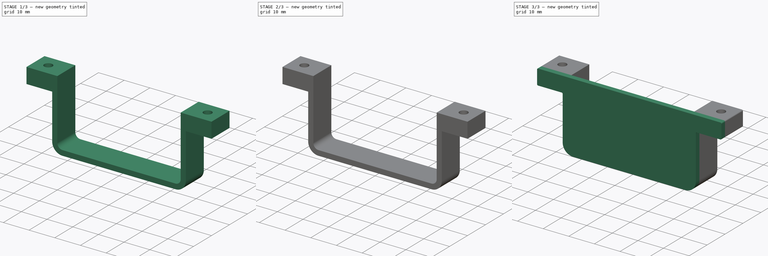
[diagram: build sequence overview — one tinted view per stage of 3, left to right]
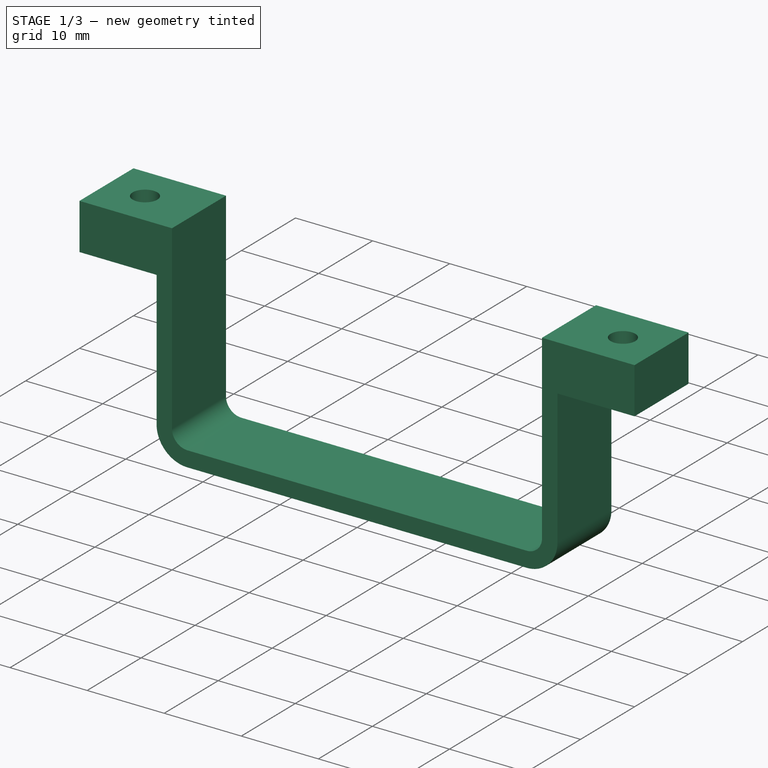
[diagram: stage 1 of 3 — iso view after this stage's code; geometry added in this stage tinted green]
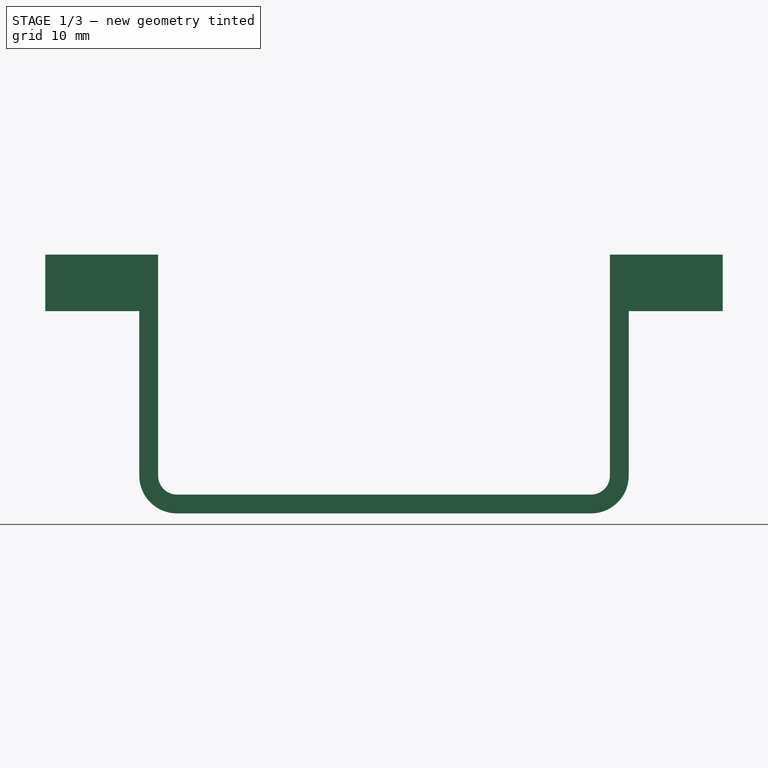
[diagram: stage 1 of 3 — front view after this stage's code; geometry added in this stage tinted green]
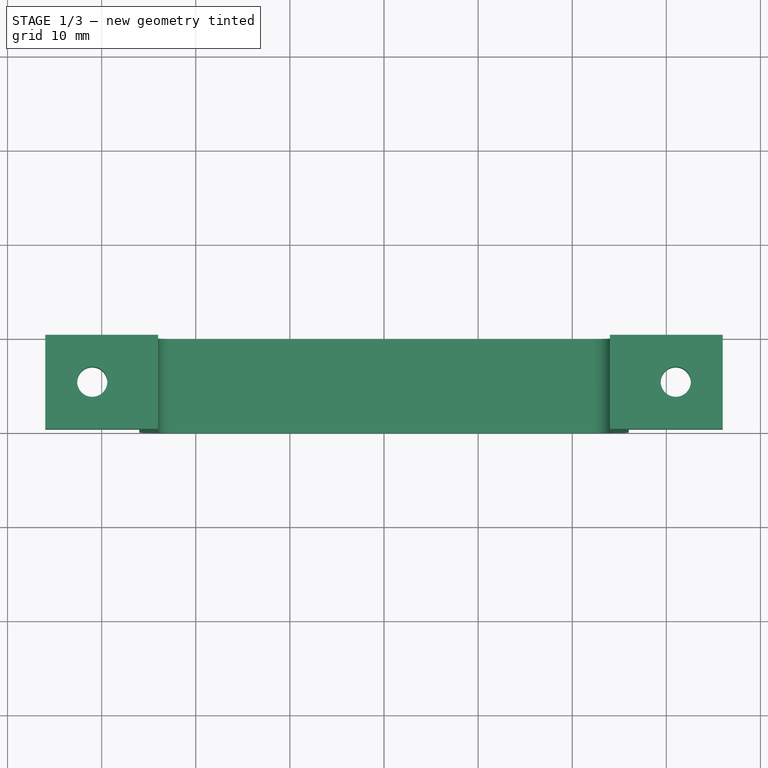
[diagram: stage 1 of 3 — top view after this stage's code; geometry added in this stage tinted green]
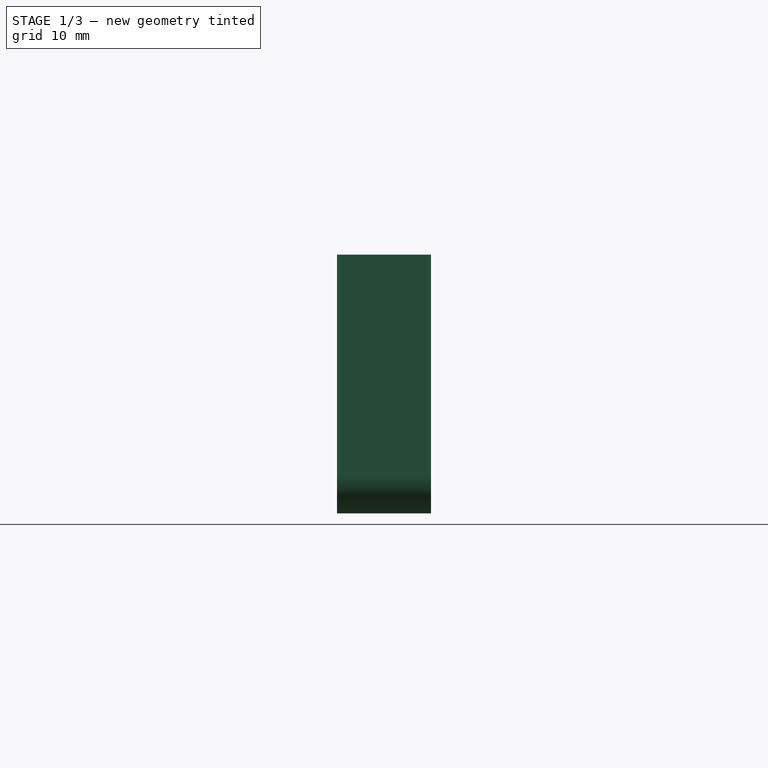
[diagram: stage 1 of 3 — right view after this stage's code; geometry added in this stage tinted green]
FCSTD DOCUMENT  (FreeCAD 0.18R4 (GitTag))
Label: LiPo_Mountingbracket_Front
License: CreativeCommons Attribution-NonCommercial
LicenseURL: http://creativecommons.org/licenses/by-nc/4.0/
objects: Sketcher::SketchObject×4, PartDesign::Pad×2, PartDesign::Pocket×2, PartDesign::Fillet×1, PartDesign::Body×1, App::Part×1
note: 14 computed .brp shape members not serialized (recipe doc carries the construction recipe); baked Part::Feature solids carry a one-line shape summary decoded from their .brp

FEATURE [Sketcher::SketchObject] Sketch
  MapMode = 5
  Placement = pos=(0,0,0) rot=(1,0,0;1.5708rad)
  Support = -> [XZ_Plane001]
  sketch-geometry (16):
    g0: LineSegment StartX=-36 StartY=0 StartZ=0 EndX=-36 EndY=-6 EndZ=0
    g1: LineSegment StartX=-36 StartY=-6 StartZ=0 EndX=-26 EndY=-6 EndZ=0
    g2: LineSegment StartX=-26 StartY=-6 StartZ=0 EndX=-26 EndY=-23.5 EndZ=0
    g3: LineSegment StartX=-22 StartY=-27.5 StartZ=0 EndX=22 EndY=-27.5 EndZ=0
    g4: LineSegment StartX=26 StartY=-23.5 StartZ=0 EndX=26 EndY=-6 EndZ=0
    g5: LineSegment StartX=26 StartY=-6 StartZ=0 EndX=36 EndY=-6 EndZ=0
    g6: LineSegment StartX=36 StartY=-6 StartZ=0 EndX=36 EndY=0 EndZ=0
    g7: LineSegment StartX=36 StartY=0 StartZ=0 EndX=24 EndY=0 EndZ=0
    g8: LineSegment StartX=24 StartY=0 StartZ=0 EndX=24 EndY=-23.5 EndZ=0
    g9: LineSegment StartX=22 StartY=-25.5 StartZ=0 EndX=-22 EndY=-25.5 EndZ=0
    g10: LineSegment StartX=-24 StartY=-23.5 StartZ=0 EndX=-24 EndY=0 EndZ=0
    g11: LineSegment StartX=-24 StartY=0 StartZ=0 EndX=-36 EndY=0 EndZ=0
    g12: ArcOfCircle CenterX=-22 CenterY=-23.5 CenterZ=0 NormalX=0 NormalY=0 NormalZ=1 AngleXU=0 Radius=2 StartAngle=3.14159 EndAngle=4.71239
    g13: ArcOfCircle CenterX=-22 CenterY=-23.5 CenterZ=0 NormalX=0 NormalY=0 NormalZ=1 AngleXU=0 Radius=4 StartAngle=3.14159 EndAngle=4.71239
    g14: ArcOfCircle CenterX=22 CenterY=-23.5 CenterZ=0 NormalX=0 NormalY=0 NormalZ=1 AngleXU=0 Radius=2 StartAngle=4.71239 EndAngle=6.28319
    g15: ArcOfCircle CenterX=22 CenterY=-23.5 CenterZ=0 NormalX=0 NormalY=0 NormalZ=1 AngleXU=0 Radius=4 StartAngle=4.71239 EndAngle=6.28319
  constraints (41):
    c: PointOnObject(g0,g-1)
    c: Vertical(g0)
    c: Coincident(g0,g1)
    c: Horizontal(g1)
    c: Coincident(g1,g2)
    c: Vertical(g2)
    c: Horizontal(g3)
    c: Vertical(g4)
    c: Coincident(g4,g5)
    c: Coincident(g5,g6)
    c: Vertical(g6)
    c: Coincident(g6,g7)
    c: Horizontal(g7)
    c: Coincident(g7,g8)
    c: Vertical(g8)
    c: Horizontal(g9)
    c: Vertical(g10)
    c: Coincident(g10,g11)
    c: Coincident(g11,g0)
    c: Horizontal(g11)
    c: Symmetric(g7,g10,g-1)
    c: DistanceX(g10,g7) = 48
    c: Symmetric(g5,g0,g-2)
    c: Symmetric(g1,g4,g-2)
    c: DistanceY(g0,g0) = 6
    c: DistanceX(g11,g11) = 12
    c: Tangent(g9,g12) = 1.5708
    c: Tangent(g10,g12) = 1.5708
    c: Tangent(g2,g13) = -1.5708
    c: Tangent(g3,g13) = -1.5708
    c: Tangent(g8,g14) = 1.5708
    c: Tangent(g9,g14) = 1.5708
    c: Tangent(g3,g15) = -1.5708
    c: Tangent(g4,g15) = -1.5708
    c: Radius(g12) = 2
    c: Radius(g13) = 4
    c: Horizontal(g10,g2)
    c: Horizontal(g8,g4)
    c: Vertical(g3,g9)
    c: DistanceY(g3,g10) = 27.5
    c: Equal(g14,g12)
FEATURE [PartDesign::Pad] Pad  label="Baseplate"
  Length = 10
  Length2 = 100
  Placement = pos=(0,0,0) rot=(1,0,0;1.5708rad)
  Profile = -> Sketch
  Reversed = true
  Type = 0
FEATURE [Sketcher::SketchObject] Sketch002
  MapMode = 5
  Placement = pos=(0,-1.3e-15,-6) rot=(1,0,0;3.14159rad)
  Support = -> [Pad]
  sketch-geometry (2):
    g0: Circle CenterX=-31 CenterY=-5 CenterZ=0 NormalX=0 NormalY=0 NormalZ=1 AngleXU=0 Radius=1.6
    g1: Circle CenterX=31 CenterY=-5 CenterZ=0 NormalX=0 NormalY=0 NormalZ=1 AngleXU=0 Radius=1.6
  constraints (5):
    c: Symmetric(g0,g1,g-2)
    c: Equal(g0,g1)
    c: Radius(g0) = 1.6
    c: DistanceX(g0,g-1) = 31
    c: DistanceY(g0,g-1) = 5
FEATURE [PartDesign::Pocket] Pocket  label="M3 Throughhole"
  BaseFeature = -> Pad
  Length = 6
  Length2 = 100
  Placement = pos=(0,0,0) rot=(1,0,0;1.5708rad)
  Profile = -> Sketch002
  Type = 0
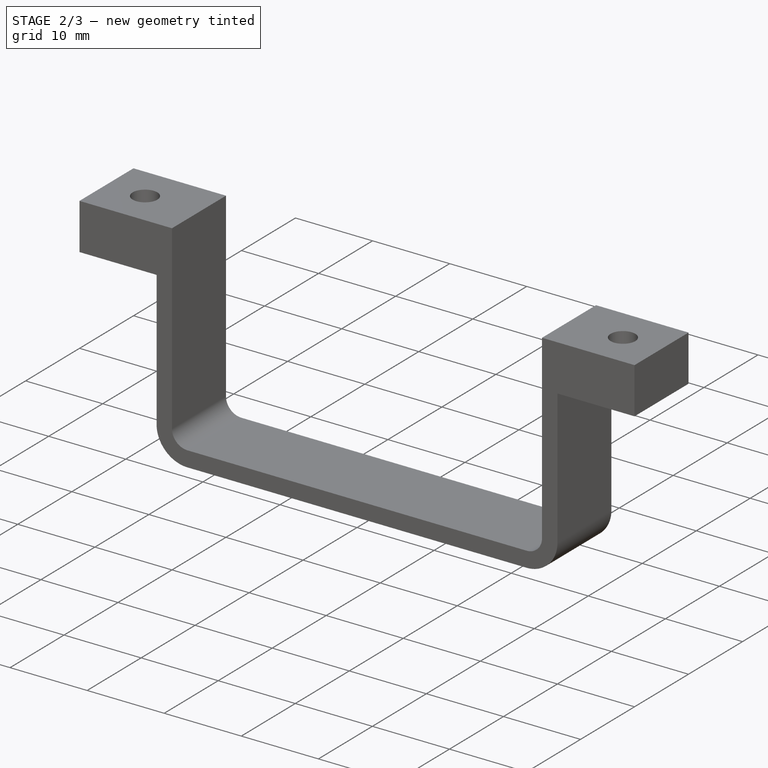
[diagram: stage 2 of 3 — iso view after this stage's code; geometry added in this stage tinted green]
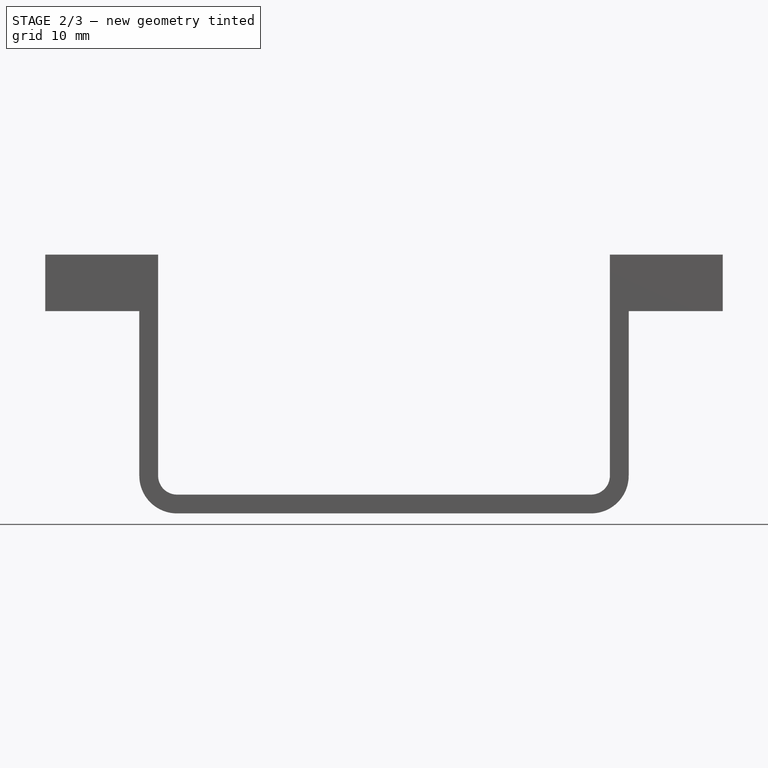
[diagram: stage 2 of 3 — front view after this stage's code; geometry added in this stage tinted green]
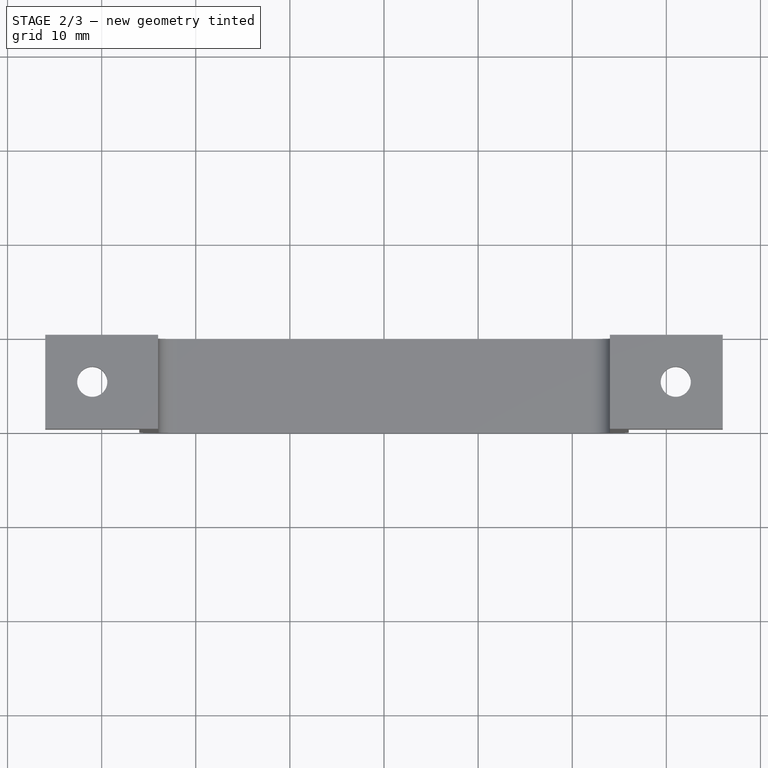
[diagram: stage 2 of 3 — top view after this stage's code; geometry added in this stage tinted green]
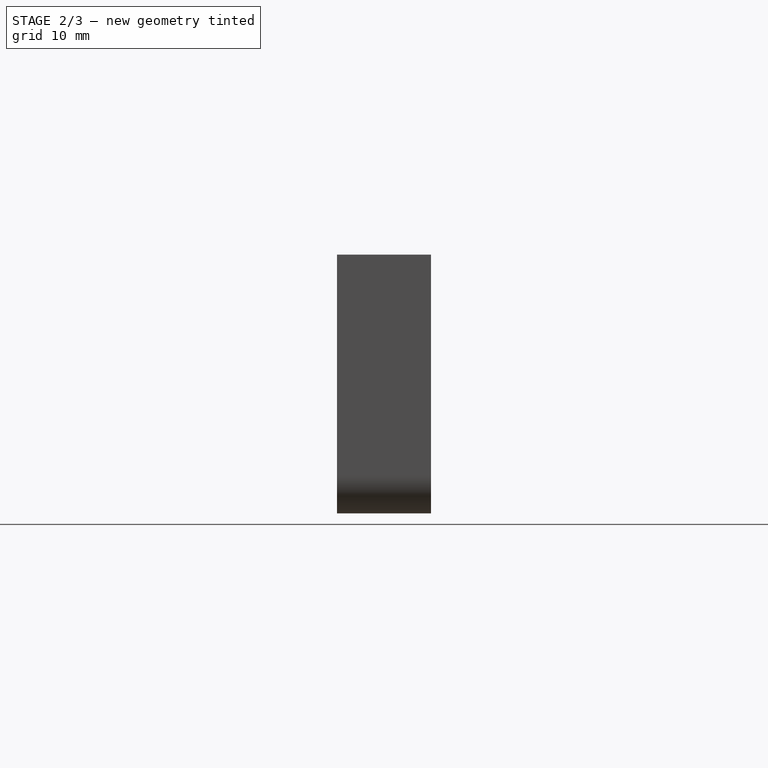
[diagram: stage 2 of 3 — right view after this stage's code; geometry added in this stage tinted green]
FEATURE [Sketcher::SketchObject] Sketch003
  MapMode = 5
  Placement = pos=(0,-1.3e-15,-6) rot=(1,0,0;3.14159rad)
  Support = -> [Pocket]
  sketch-geometry (2):
    g0: Circle CenterX=-31 CenterY=-5 CenterZ=0 NormalX=0 NormalY=0 NormalZ=1 AngleXU=0 Radius=2.85
    g1: Circle CenterX=31 CenterY=-5 CenterZ=0 NormalX=0 NormalY=0 NormalZ=1 AngleXU=0 Radius=2.85
  constraints (5):
    c: Equal(g1,g0)
    c: Radius(g0) = 2.85
    c: DistanceY(g0,g-1) = 5
    c: Symmetric(g0,g1,g-2)
    c: DistanceX(g1) = 31
FEATURE [PartDesign::Pocket] Pocket001  label="M3 Head Hole"
  BaseFeature = -> Pocket
  Length = 3
  Length2 = 100
  Placement = pos=(0,0,0) rot=(1,0,0;1.5708rad)
  Profile = -> Sketch003
  Type = 0
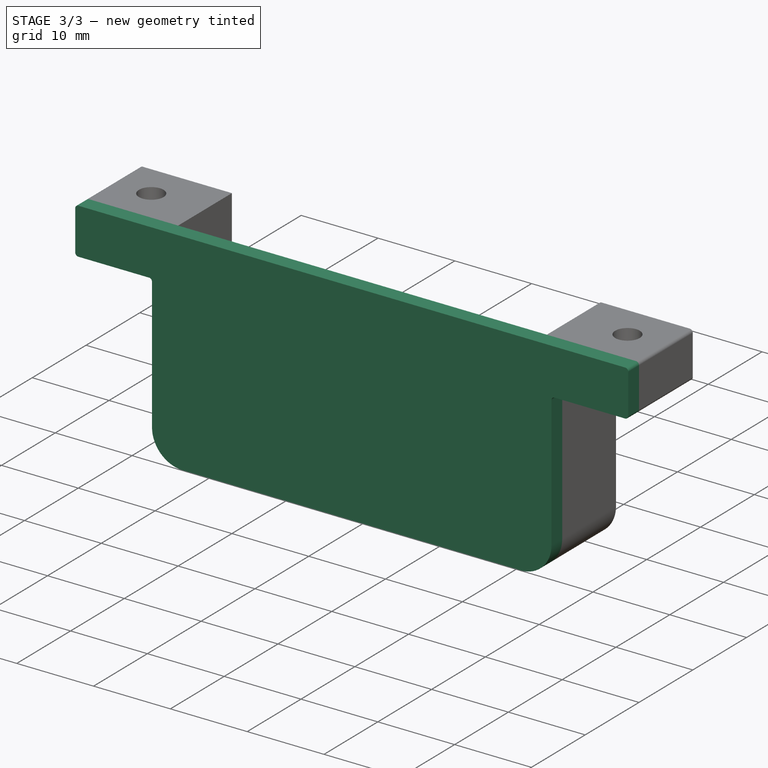
[diagram: stage 3 of 3 — iso view after this stage's code; geometry added in this stage tinted green]
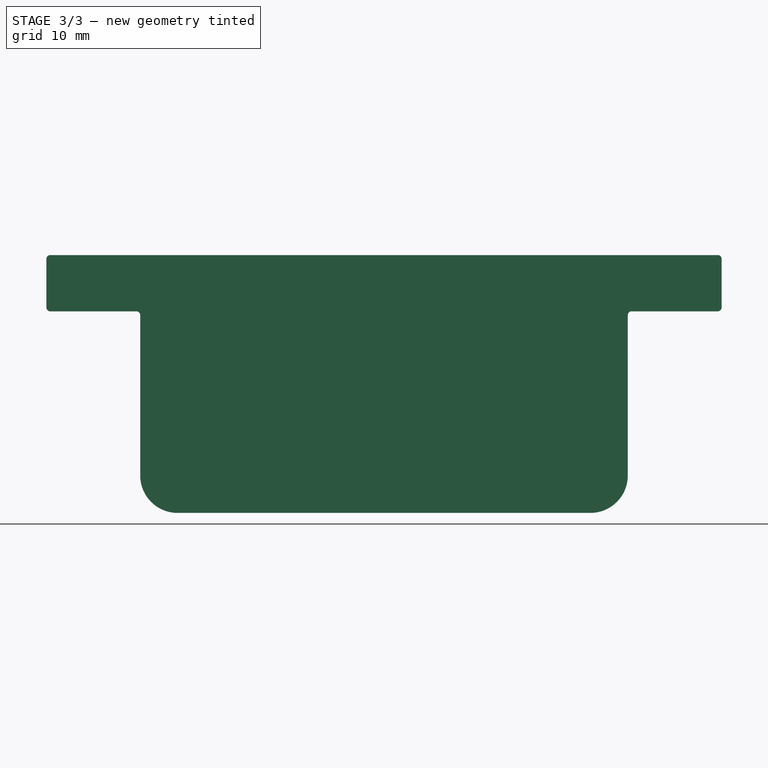
[diagram: stage 3 of 3 — front view after this stage's code; geometry added in this stage tinted green]
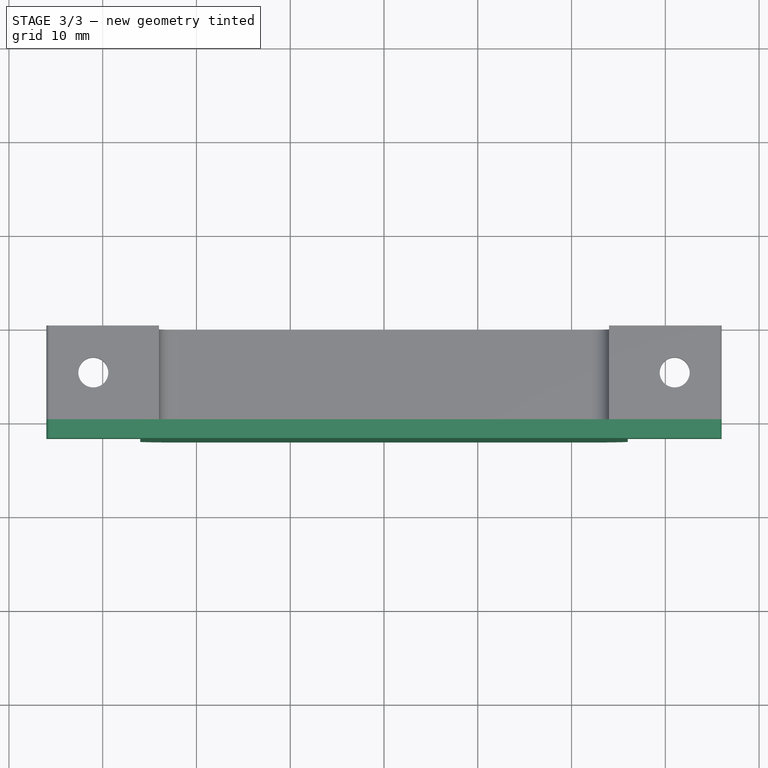
[diagram: stage 3 of 3 — top view after this stage's code; geometry added in this stage tinted green]
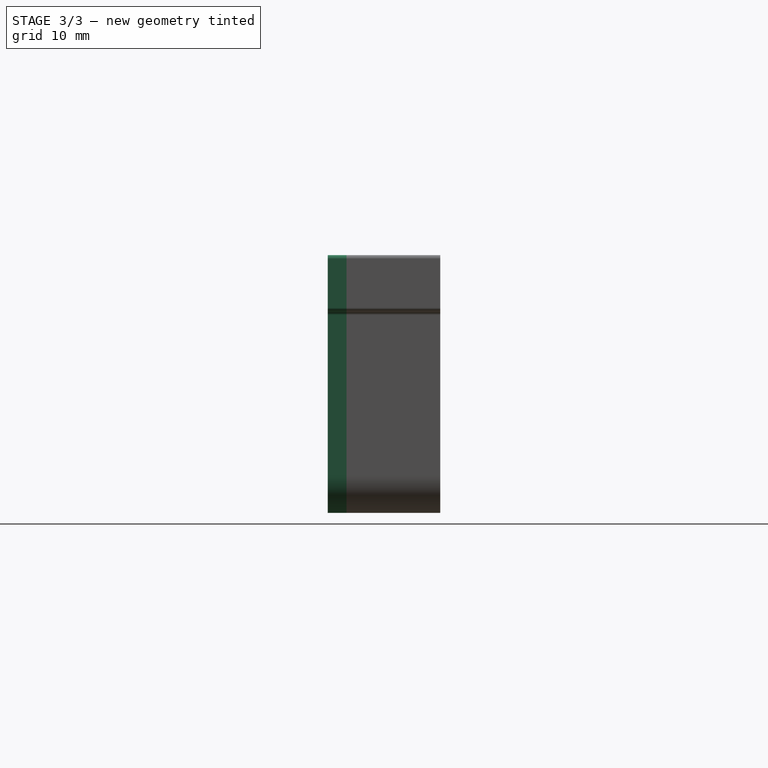
[diagram: stage 3 of 3 — right view after this stage's code; geometry added in this stage tinted green]
FEATURE [Sketcher::SketchObject] Sketch004
  MapMode = 5
  Placement = pos=(0,0,0) rot=(1,0,0;1.5708rad)
  Support = -> [Pocket001]
  sketch-geometry (10):
    g0: LineSegment StartX=-36 StartY=0 StartZ=0 EndX=-36 EndY=-6 EndZ=0
    g1: LineSegment StartX=-36 StartY=-6 StartZ=0 EndX=-26 EndY=-6 EndZ=0
    g2: LineSegment StartX=-26 StartY=-6 StartZ=0 EndX=-26 EndY=-23.5 EndZ=0
    g3: LineSegment StartX=-22 StartY=-27.5 StartZ=0 EndX=22 EndY=-27.5 EndZ=0
    g4: LineSegment StartX=26 StartY=-23.5 StartZ=0 EndX=26 EndY=-6 EndZ=0
    g5: LineSegment StartX=26 StartY=-6 StartZ=0 EndX=36 EndY=-6 EndZ=0
    g6: LineSegment StartX=36 StartY=-6 StartZ=0 EndX=36 EndY=0 EndZ=0
    g7: LineSegment StartX=36 StartY=0 StartZ=0 EndX=-36 EndY=0 EndZ=0
    g8: ArcOfCircle CenterX=-22 CenterY=-23.5 CenterZ=0 NormalX=0 NormalY=0 NormalZ=1 AngleXU=0 Radius=4 StartAngle=3.14159 EndAngle=4.71239
    g9: ArcOfCircle CenterX=22 CenterY=-23.5 CenterZ=0 NormalX=0 NormalY=0 NormalZ=1 AngleXU=0 Radius=4 StartAngle=4.71239 EndAngle=6.28319
  constraints (26):
    c: PointOnObject(g0,g-1)
    c: Vertical(g0)
    c: Coincident(g0,g1)
    c: Horizontal(g1)
    c: Coincident(g1,g2)
    c: Vertical(g2)
    c: Horizontal(g3)
    c: Vertical(g4)
    c: Coincident(g4,g5)
    c: Horizontal(g5)
    c: Coincident(g5,g6)
    c: Vertical(g6)
    c: Coincident(g6,g7)
    c: Coincident(g7,g0)
    c: Symmetric(g0,g6,g-1)
    c: Symmetric(g1,g4,g-2)
    c: Tangent(g2,g8) = -1.5708
    c: Tangent(g3,g8) = -1.5708
    c: Tangent(g3,g9) = -1.5708
    c: Tangent(g4,g9) = -1.5708
    c: Equal(g9,g8)
    c: DistanceY(g0,g0) = 6
    c: DistanceX(g7,g7) = 72
    c: DistanceY(g3,g0) = 27.5
    c: Radius(g8) = 4
    c: DistanceX(g1,g4) = 52
FEATURE [PartDesign::Pad] Pad001  label="Wall"
  BaseFeature = -> Pocket001
  Length = 2
  Length2 = 100
  Placement = pos=(0,0,0) rot=(1,0,0;1.5708rad)
  Profile = -> Sketch004
  Type = 0
FEATURE [PartDesign::Fillet] Fillet
  Base = -> Pad001 [Edge41,Edge34,Edge10,Edge56,Edge54,Edge51]
  BaseFeature = -> Pad001
  Placement = pos=(0,0,0) rot=(1,0,0;1.5708rad)
  Radius = 0.4
FEATURE [PartDesign::Body] Body  label="LiPo_Mountingbracket_Front_Body"
  Group = -> [Sketch,Pad,Sketch002,Pocket,Sketch003,Pocket001,Sketch004,Pad001,Fillet]
  Origin = -> Origin001
  Tip = -> Fillet
FEATURE [App::Part] Part  label="LiPo_Mountingbracket_Front"
  Group = -> [Body]
  Origin = -> Origin
  Placement = pos=(0,0,0) rot=(0,0.707107,0.707107;3.14159rad)
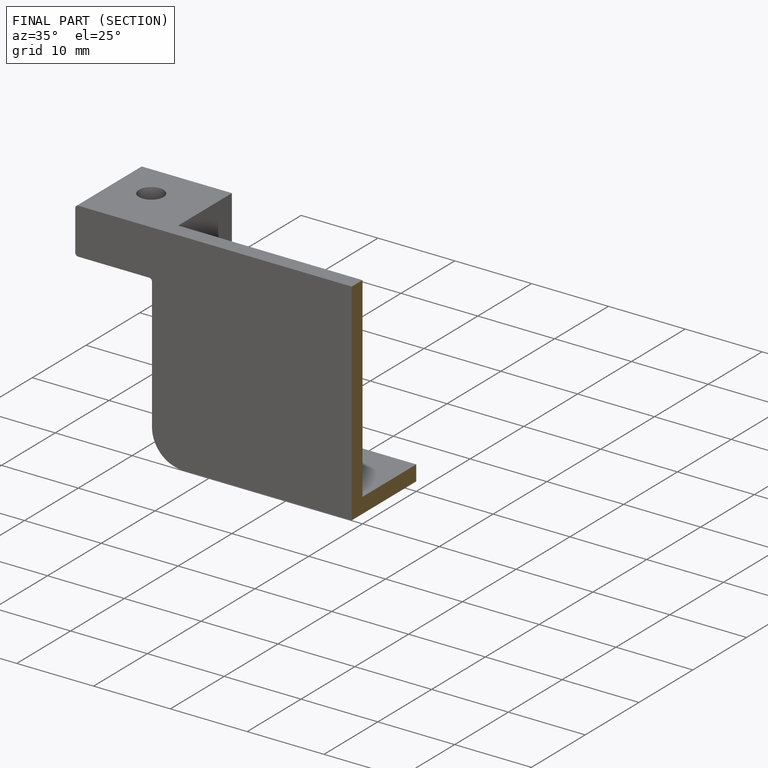
[diagram: finished part — half-section view (interior)]
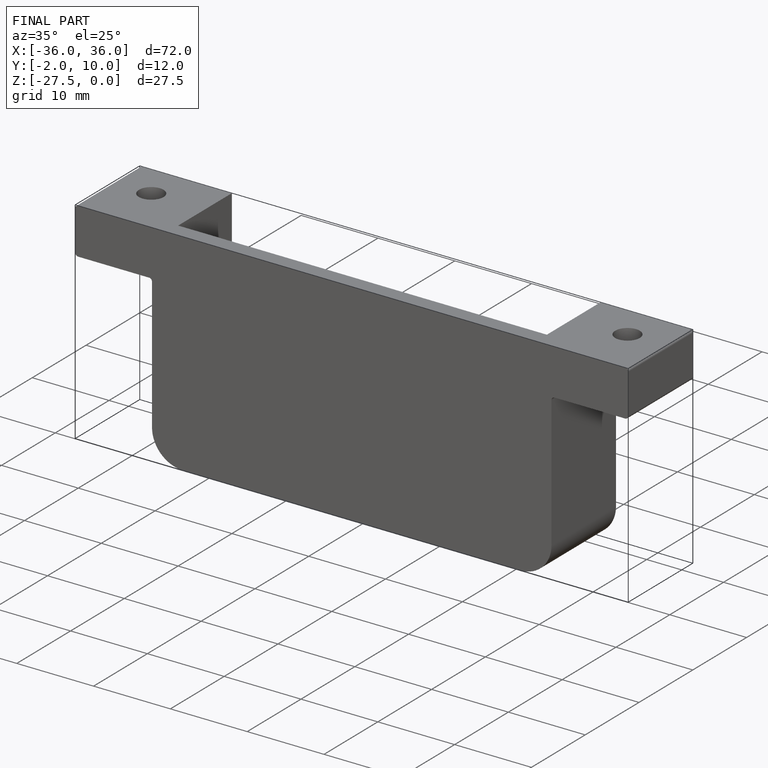
[diagram: finished part — iso view with bounding-box wireframe]
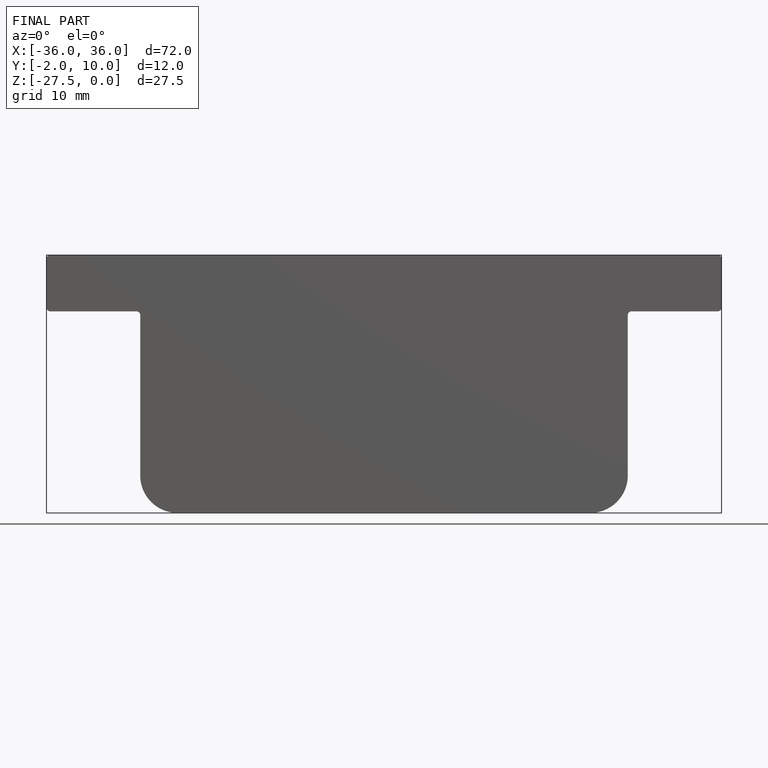
[diagram: finished part — front view with bounding-box wireframe]
